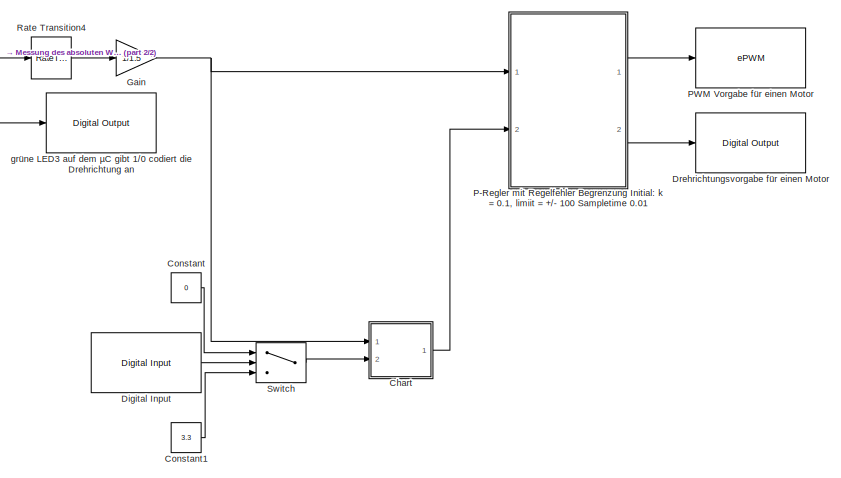
[diagram: root canvas - part 1/2, right side, full height]
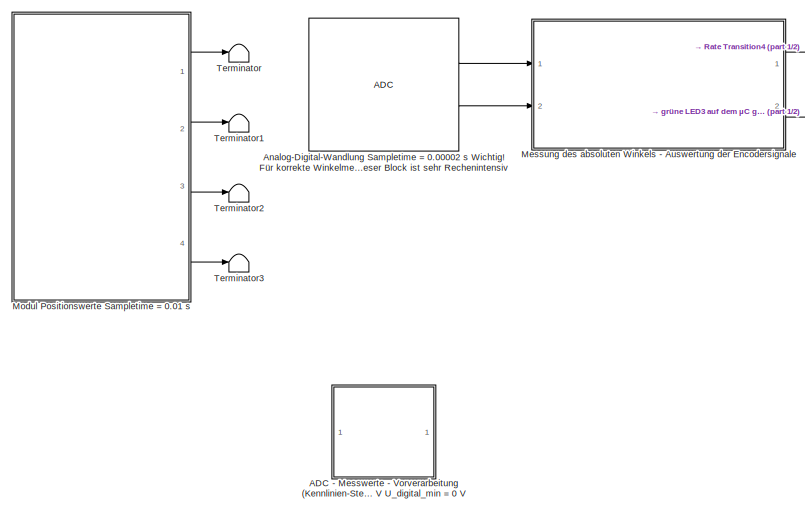
[diagram: root canvas - part 2/2, left side, full height]
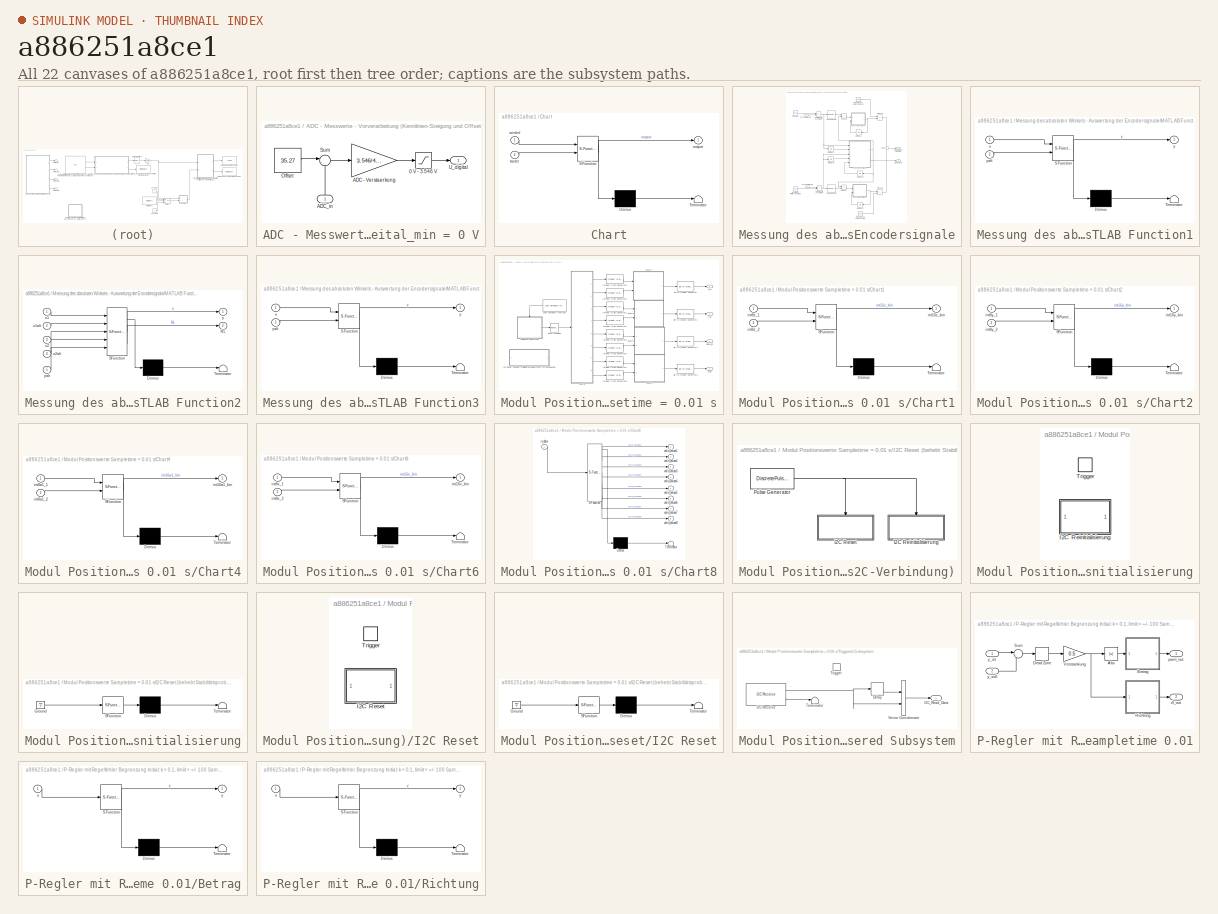
[diagram: thumbnail index - all 22 canvases of the model, root first then tree order]
MODEL slx_a886251a8ce1
KIND model
CONFIG AbsTol = auto
CONFIG EnableMultiTasking = on
CONFIG FixedStep = auto
CONFIG MaxStep = auto
CONFIG MinStep = auto
CONFIG RelTol = 1e-3
CONFIG SampleTimeConstraint = Unconstrained
CONFIG Solver = FixedStepDiscrete
CONFIG SolverName = FixedStepDiscrete
CONFIG StartTime = 0.0
CONFIG StopTime = 10.0
BLOCK [SubSystem] ADC - Messwerte - Vorverarbeitung (Kennlinien-Steigung und Offset-Kompensation) U_digital = (ADC_in - Offset) * 3.546 V // 4096 mit U_digital_max = 3.546 V U_digital_min = 0 V
  Commented = on
  Ports = [1, 1]
  RequestExecContextInheritance = off
BLOCK [Saturate] ADC - Messwerte - Vorverarbeitung (Kennlinien-Steigung und Offset-Kompensation) U_digital = (ADC_in - Offset) * 3.546 V // 4096 mit U_digital_max = 3.546 V U_digital_min = 0 V/0 V - 3.546 V
  InputPortMap = u0
  LowerLimit = 0
  Ports = [1, 1]
  UpperLimit = 3.546
BLOCK [Gain] ADC - Messwerte - Vorverarbeitung (Kennlinien-Steigung und Offset-Kompensation) U_digital = (ADC_in - Offset) * 3.546 V // 4096 mit U_digital_max = 3.546 V U_digital_min = 0 V/ADC - Verstaerkung
  Gain = 3.546/4096
  OutDataTypeStr = Inherit: Inherit via internal rule
  ParamDataTypeStr = Inherit: Inherit via internal rule
  SaturateOnIntegerOverflow = off
BLOCK [Inport] ADC - Messwerte - Vorverarbeitung (Kennlinien-Steigung und Offset-Kompensation) U_digital = (ADC_in - Offset) * 3.546 V // 4096 mit U_digital_max = 3.546 V U_digital_min = 0 V/ADC_in
  IconDisplay = Port number
BLOCK [Constant] ADC - Messwerte - Vorverarbeitung (Kennlinien-Steigung und Offset-Kompensation) U_digital = (ADC_in - Offset) * 3.546 V // 4096 mit U_digital_max = 3.546 V U_digital_min = 0 V/Offset
  Value = 35.27
BLOCK [Sum] ADC - Messwerte - Vorverarbeitung (Kennlinien-Steigung und Offset-Kompensation) U_digital = (ADC_in - Offset) * 3.546 V // 4096 mit U_digital_max = 3.546 V U_digital_min = 0 V/Sum
  IconShape = round
  InputSameDT = off
  Inputs = |-+
  OutDataTypeStr = Inherit: Inherit via internal rule
  Ports = [2, 1]
  SaturateOnIntegerOverflow = off
BLOCK [Outport] ADC - Messwerte - Vorverarbeitung (Kennlinien-Steigung und Offset-Kompensation) U_digital = (ADC_in - Offset) * 3.546 V // 4096 mit U_digital_max = 3.546 V U_digital_min = 0 V/U_digital
  IconDisplay = Port number
BLOCK [Reference] Analog-Digital-Wandlung Sampletime = 0.00002 s Wichtig! Für korrekte Winkelmessung nicht die Sampletime vergrößern Weitere Ports können hinzugefügt werden (Farbsensor, Sharp-Sensoren) Wichtig! Dieser Block ist sehr Rechenintensiv  REF=c280xlib/ADC
  Ports = [0, 2]
  SourceBlock = c280xlib/ADC
  SourceProductBaseCode = TIC2000
  SourceProductName = Embedded Coder Support Package for Texas Instruments C2000 Processors
  SourceType = C280x/C2833x ADC
  UserDataPersistent = on
BLOCK [SubSystem] Chart
  ErrorFcn = Stateflow.Translate.translate
  PermitHierarchicalResolution = ExplicitOnly
  Ports = [2, 1]
  RequestExecContextInheritance = off
  SFBlockType = Chart
  TreatAsAtomicUnit = on
BLOCK [Demux] Chart/ Demux 
  Outputs = 1
  Ports = [1, 1]
BLOCK [S-Function] Chart/ SFunction 
  EnableBusSupport = on
  FunctionName = sf_sfun
  PortCounts = [2 2]
  Ports = [2, 2]
  SFcnIsStateOwnerBlock = off
  SFunctionDeploymentMode = off
  Tag = Stateflow S-Function G6A_Einstiegsaufgabe_Informationstechnik 3
BLOCK [Terminator] Chart/ Terminator 
BLOCK [Outport] Chart/output
  IconDisplay = Port number
BLOCK [Inport] Chart/taster
  IconDisplay = Port number
  Port = 2
BLOCK [Inport] Chart/winkel
  IconDisplay = Port number
BLOCK [Constant] Constant
  Value = 0
BLOCK [Constant] Constant1
  Value = 3.3
BLOCK [Reference] Digital Input  REF=c2833xlib/Digital Input
  Ports = [0, 1]
  SourceBlock = c2833xlib/Digital Input
  SourceProductBaseCode = TIC2000
  SourceProductName = Embedded Coder Support Package for Texas Instruments C2000 Processors
  SourceType = C2833x GPIO Digital Input
  UserDataPersistent = on
BLOCK [Reference] Drehrichtungsvorgabe für einen Motor  REF=c2833xlib/Digital Output
  Ports = [1]
  SourceBlock = c2833xlib/Digital Output
  SourceProductBaseCode = TIC2000
  SourceProductName = Embedded Coder Support Package for Texas Instruments C2000 Processors
  SourceType = C2833x GPIO Digital Output
  UserDataPersistent = on
BLOCK [Gain] Gain
  Gain = 1/1.5
  OutDataTypeStr = Inherit: Inherit via internal rule
  ParamDataTypeStr = Inherit: Inherit via internal rule
  SaturateOnIntegerOverflow = off
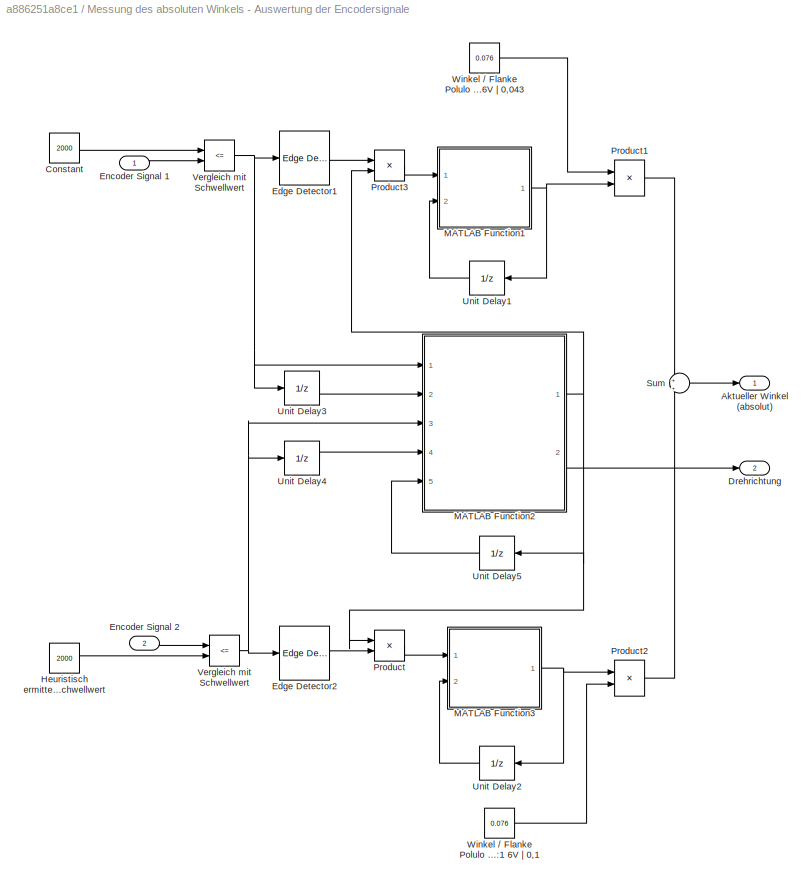
BLOCK [SubSystem] Messung des absoluten Winkels - Auswertung der Encodersignale
  Ports = [2, 2]
  RequestExecContextInheritance = off
BLOCK [Outport] Messung des absoluten Winkels - Auswertung der Encodersignale/Aktueller Winkel (absolut)
  IconDisplay = Port number
BLOCK [Constant] Messung des absoluten Winkels - Auswertung der Encodersignale/Constant
  Value = 2000
BLOCK [Outport] Messung des absoluten Winkels - Auswertung der Encodersignale/Drehrichtung
  IconDisplay = Port number
  Port = 2
BLOCK [Reference] Messung des absoluten Winkels - Auswertung der Encodersignale/Edge Detector1  REF=powerlib_extras/Control 
Blocks/Edge Detector
  Ports = [1, 1]
  SourceBlock = powerlib_extras/Control \nBlocks/Edge Detector
  SourceType = Edge Detector
BLOCK [Reference] Messung des absoluten Winkels - Auswertung der Encodersignale/Edge Detector2  REF=powerlib_extras/Control 
Blocks/Edge Detector
  Ports = [1, 1]
  SourceBlock = powerlib_extras/Control \nBlocks/Edge Detector
  SourceType = Edge Detector
BLOCK [Inport] Messung des absoluten Winkels - Auswertung der Encodersignale/Encoder Signal 1
  IconDisplay = Port number
BLOCK [Inport] Messung des absoluten Winkels - Auswertung der Encodersignale/Encoder Signal 2
  IconDisplay = Port number
  Port = 2
BLOCK [Constant] Messung des absoluten Winkels - Auswertung der Encodersignale/Heuristisch ermittelter Schwellwert
  Value = 2000
BLOCK [SubSystem] Messung des absoluten Winkels - Auswertung der Encodersignale/MATLAB Function1
  ErrorFcn = Stateflow.Translate.translate
  PermitHierarchicalResolution = ExplicitOnly
  Ports = [2, 1]
  RequestExecContextInheritance = off
  SFBlockType = MATLAB Function
  TreatAsAtomicUnit = on
BLOCK [Demux] Messung des absoluten Winkels - Auswertung der Encodersignale/MATLAB Function1/ Demux 
  Outputs = 1
  Ports = [1, 1]
BLOCK [S-Function] Messung des absoluten Winkels - Auswertung der Encodersignale/MATLAB Function1/ SFunction 
  EnableBusSupport = on
  FunctionName = sf_sfun
  PortCounts = [2 2]
  Ports = [2, 2]
  SFcnIsStateOwnerBlock = off
  SFunctionDeploymentMode = off
  Tag = Stateflow S-Function G6A_Einstiegsaufgabe_Informationstechnik 8
BLOCK [Terminator] Messung des absoluten Winkels - Auswertung der Encodersignale/MATLAB Function1/ Terminator 
BLOCK [Inport] Messung des absoluten Winkels - Auswertung der Encodersignale/MATLAB Function1/u
  IconDisplay = Port number
BLOCK [Outport] Messung des absoluten Winkels - Auswertung der Encodersignale/MATLAB Function1/y
  IconDisplay = Port number
BLOCK [Inport] Messung des absoluten Winkels - Auswertung der Encodersignale/MATLAB Function1/yalt
  IconDisplay = Port number
  Port = 2
BLOCK [SubSystem] Messung des absoluten Winkels - Auswertung der Encodersignale/MATLAB Function2
  ErrorFcn = Stateflow.Translate.translate
  PermitHierarchicalResolution = ExplicitOnly
  Ports = [5, 2]
  RequestExecContextInheritance = off
  SFBlockType = MATLAB Function
  TreatAsAtomicUnit = on
BLOCK [Demux] Messung des absoluten Winkels - Auswertung der Encodersignale/MATLAB Function2/ Demux 
  Outputs = 1
  Ports = [1, 1]
BLOCK [S-Function] Messung des absoluten Winkels - Auswertung der Encodersignale/MATLAB Function2/ SFunction 
  EnableBusSupport = on
  FunctionName = sf_sfun
  PortCounts = [5 3]
  Ports = [5, 3]
  SFcnIsStateOwnerBlock = off
  SFunctionDeploymentMode = off
  Tag = Stateflow S-Function G6A_Einstiegsaufgabe_Informationstechnik 15
BLOCK [Terminator] Messung des absoluten Winkels - Auswertung der Encodersignale/MATLAB Function2/ Terminator 
BLOCK [Outport] Messung des absoluten Winkels - Auswertung der Encodersignale/MATLAB Function2/RL
  IconDisplay = Port number
  Port = 2
BLOCK [Inport] Messung des absoluten Winkels - Auswertung der Encodersignale/MATLAB Function2/u1
  IconDisplay = Port number
BLOCK [Inport] Messung des absoluten Winkels - Auswertung der Encodersignale/MATLAB Function2/u1alt
  IconDisplay = Port number
  Port = 2
BLOCK [Inport] Messung des absoluten Winkels - Auswertung der Encodersignale/MATLAB Function2/u2
  IconDisplay = Port number
  Port = 3
BLOCK [Inport] Messung des absoluten Winkels - Auswertung der Encodersignale/MATLAB Function2/u2alt
  IconDisplay = Port number
  Port = 4
BLOCK [Outport] Messung des absoluten Winkels - Auswertung der Encodersignale/MATLAB Function2/y
  IconDisplay = Port number
BLOCK [Inport] Messung des absoluten Winkels - Auswertung der Encodersignale/MATLAB Function2/yalt
  IconDisplay = Port number
  Port = 5
BLOCK [SubSystem] Messung des absoluten Winkels - Auswertung der Encodersignale/MATLAB Function3
  ErrorFcn = Stateflow.Translate.translate
  PermitHierarchicalResolution = ExplicitOnly
  Ports = [2, 1]
  RequestExecContextInheritance = off
  SFBlockType = MATLAB Function
  TreatAsAtomicUnit = on
BLOCK [Demux] Messung des absoluten Winkels - Auswertung der Encodersignale/MATLAB Function3/ Demux 
  Outputs = 1
  Ports = [1, 1]
BLOCK [S-Function] Messung des absoluten Winkels - Auswertung der Encodersignale/MATLAB Function3/ SFunction 
  EnableBusSupport = on
  FunctionName = sf_sfun
  PortCounts = [2 2]
  Ports = [2, 2]
  SFcnIsStateOwnerBlock = off
  SFunctionDeploymentMode = off
  Tag = Stateflow S-Function G6A_Einstiegsaufgabe_Informationstechnik 20
BLOCK [Terminator] Messung des absoluten Winkels - Auswertung der Encodersignale/MATLAB Function3/ Terminator 
BLOCK [Inport] Messung des absoluten Winkels - Auswertung der Encodersignale/MATLAB Function3/u
  IconDisplay = Port number
BLOCK [Outport] Messung des absoluten Winkels - Auswertung der Encodersignale/MATLAB Function3/y
  IconDisplay = Port number
BLOCK [Inport] Messung des absoluten Winkels - Auswertung der Encodersignale/MATLAB Function3/yalt
  IconDisplay = Port number
  Port = 2
BLOCK [Product] Messung des absoluten Winkels - Auswertung der Encodersignale/Product
  InputSameDT = off
  OutDataTypeStr = Inherit: Inherit via internal rule
  Ports = [2, 1]
  SaturateOnIntegerOverflow = off
BLOCK [Product] Messung des absoluten Winkels - Auswertung der Encodersignale/Product1
  InputSameDT = off
  OutDataTypeStr = Inherit: Inherit via internal rule
  Ports = [2, 1]
  SaturateOnIntegerOverflow = off
BLOCK [Product] Messung des absoluten Winkels - Auswertung der Encodersignale/Product2
  InputSameDT = off
  OutDataTypeStr = Inherit: Inherit via internal rule
  Ports = [2, 1]
  SaturateOnIntegerOverflow = off
BLOCK [Product] Messung des absoluten Winkels - Auswertung der Encodersignale/Product3
  InputSameDT = off
  OutDataTypeStr = Inherit: Inherit via internal rule
  Ports = [2, 1]
  SaturateOnIntegerOverflow = off
BLOCK [Sum] Messung des absoluten Winkels - Auswertung der Encodersignale/Sum
  IconShape = round
  InputSameDT = off
  Inputs = +|+
  OutDataTypeStr = Inherit: Inherit via internal rule
  Ports = [2, 1]
  SaturateOnIntegerOverflow = off
BLOCK [UnitDelay] Messung des absoluten Winkels - Auswertung der Encodersignale/Unit Delay1
  InputProcessing = Elements as channels (sample based)
  SampleTime = -1
BLOCK [UnitDelay] Messung des absoluten Winkels - Auswertung der Encodersignale/Unit Delay2
  InputProcessing = Elements as channels (sample based)
  SampleTime = -1
BLOCK [UnitDelay] Messung des absoluten Winkels - Auswertung der Encodersignale/Unit Delay3
  InputProcessing = Elements as channels (sample based)
  SampleTime = -1
BLOCK [UnitDelay] Messung des absoluten Winkels - Auswertung der Encodersignale/Unit Delay4
  InputProcessing = Elements as channels (sample based)
  SampleTime = -1
BLOCK [UnitDelay] Messung des absoluten Winkels - Auswertung der Encodersignale/Unit Delay5
  InputProcessing = Elements as channels (sample based)
  SampleTime = -1
BLOCK [RelationalOperator] Messung des absoluten Winkels - Auswertung der Encodersignale/Vergleich mit Schwellwert
  InputSameDT = off
  Operator = <=
  OutDataTypeStr = boolean
  Ports = [2, 1]
BLOCK [Constant] Messung des absoluten Winkels - Auswertung der Encodersignale/Winkel // Flanke Polulo 34:1 6V | 0,22 Polulo 74:1 6V | 0,1 Polulo 98:1 6V | 0,076 Polulo 171:1 6V | 0,043
  Value = 0.076
BLOCK [Constant] Messung des absoluten Winkels - Auswertung der Encodersignale/Winkel // Flanke Polulo 34:1 6V | 0,22 Polulo 74:1 6V | 0,1 Polulo 98:1 6V | 0,076 Polulo 171:1 6V | 0,1
  Value = 0.076
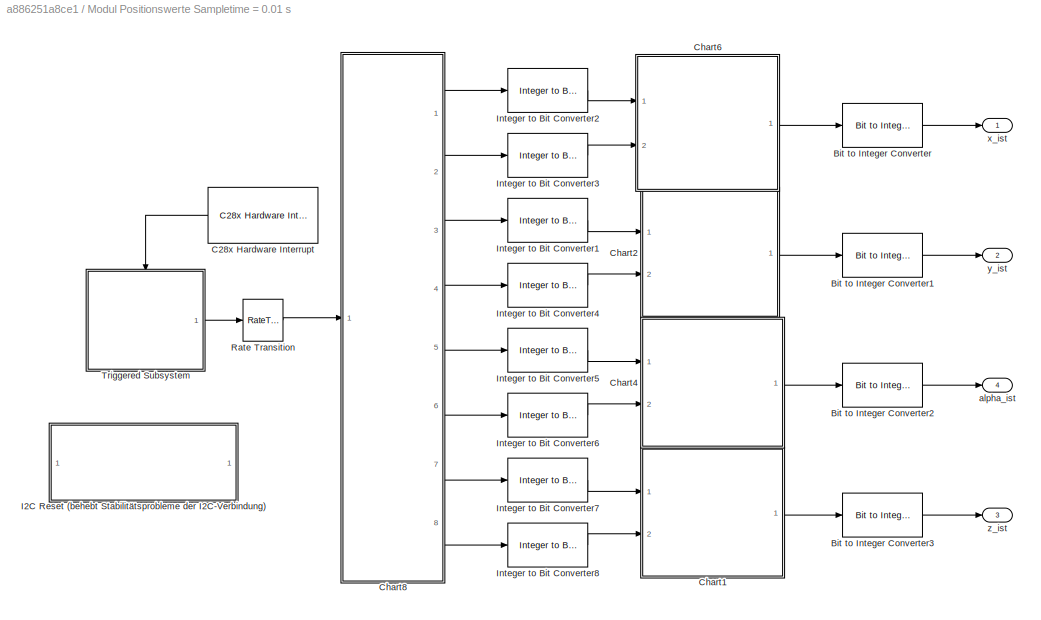
BLOCK [SubSystem] Modul Positionswerte Sampletime = 0.01 s
  Commented = on
  Ports = [0, 4]
  RequestExecContextInheritance = off
BLOCK [Reference] Modul Positionswerte Sampletime = 0.01 s/Bit to Integer Converter  REF=commutil2/Bit to Integer
Converter
  Ports = [1, 1]
  SourceBlock = commutil2/Bit to Integer\nConverter
  SourceProductBaseCode = CM
  SourceProductName = Communications Toolbox
  SourceType = Bit to Integer Converter
BLOCK [Reference] Modul Positionswerte Sampletime = 0.01 s/Bit to Integer Converter1  REF=commutil2/Bit to Integer
Converter
  Ports = [1, 1]
  SourceBlock = commutil2/Bit to Integer\nConverter
  SourceProductBaseCode = CM
  SourceProductName = Communications Toolbox
  SourceType = Bit to Integer Converter
BLOCK [Reference] Modul Positionswerte Sampletime = 0.01 s/Bit to Integer Converter2  REF=commutil2/Bit to Integer
Converter
  Ports = [1, 1]
  SourceBlock = commutil2/Bit to Integer\nConverter
  SourceProductBaseCode = CM
  SourceProductName = Communications Toolbox
  SourceType = Bit to Integer Converter
BLOCK [Reference] Modul Positionswerte Sampletime = 0.01 s/Bit to Integer Converter3  REF=commutil2/Bit to Integer
Converter
  Ports = [1, 1]
  SourceBlock = commutil2/Bit to Integer\nConverter
  SourceProductBaseCode = CM
  SourceProductName = Communications Toolbox
  SourceType = Bit to Integer Converter
BLOCK [Reference] Modul Positionswerte Sampletime = 0.01 s/C28x Hardware Interrupt  REF=c2000lib/Scheduling/C28x Hardware Interrupt
  Ports = [0, 1]
  SourceBlock = c2000lib/Scheduling/C28x Hardware Interrupt
  SourceProductBaseCode = TIC2000
  SourceProductName = Embedded Coder Support Package for Texas Instruments C2000 Processors
  SourceType = C28x Interrupt Block
BLOCK [SubSystem] Modul Positionswerte Sampletime = 0.01 s/Chart1
  ErrorFcn = Stateflow.Translate.translate
  PermitHierarchicalResolution = ExplicitOnly
  Ports = [2, 1]
  RequestExecContextInheritance = off
  SFBlockType = Chart
  TreatAsAtomicUnit = on
BLOCK [Demux] Modul Positionswerte Sampletime = 0.01 s/Chart1/ Demux 
  Outputs = 1
  Ports = [1, 1]
BLOCK [S-Function] Modul Positionswerte Sampletime = 0.01 s/Chart1/ SFunction 
  EnableBusSupport = on
  FunctionName = sf_sfun
  PortCounts = [2 2]
  Ports = [2, 2]
  SFcnIsStateOwnerBlock = off
  SFunctionDeploymentMode = off
  Tag = Stateflow S-Function G6A_Einstiegsaufgabe_Informationstechnik 11
BLOCK [Terminator] Modul Positionswerte Sampletime = 0.01 s/Chart1/ Terminator 
BLOCK [Outport] Modul Positionswerte Sampletime = 0.01 s/Chart1/int16z_bin
  IconDisplay = Port number
BLOCK [Inport] Modul Positionswerte Sampletime = 0.01 s/Chart1/int8z_1
  IconDisplay = Port number
BLOCK [Inport] Modul Positionswerte Sampletime = 0.01 s/Chart1/int8z_2
  IconDisplay = Port number
  Port = 2
BLOCK [SubSystem] Modul Positionswerte Sampletime = 0.01 s/Chart2
  ErrorFcn = Stateflow.Translate.translate
  PermitHierarchicalResolution = ExplicitOnly
  Ports = [2, 1]
  RequestExecContextInheritance = off
  SFBlockType = Chart
  TreatAsAtomicUnit = on
BLOCK [Demux] Modul Positionswerte Sampletime = 0.01 s/Chart2/ Demux 
  Outputs = 1
  Ports = [1, 1]
BLOCK [S-Function] Modul Positionswerte Sampletime = 0.01 s/Chart2/ SFunction 
  EnableBusSupport = on
  FunctionName = sf_sfun
  PortCounts = [2 2]
  Ports = [2, 2]
  SFcnIsStateOwnerBlock = off
  SFunctionDeploymentMode = off
  Tag = Stateflow S-Function G6A_Einstiegsaufgabe_Informationstechnik 13
BLOCK [Terminator] Modul Positionswerte Sampletime = 0.01 s/Chart2/ Terminator 
BLOCK [Outport] Modul Positionswerte Sampletime = 0.01 s/Chart2/int16y_bin
  IconDisplay = Port number
BLOCK [Inport] Modul Positionswerte Sampletime = 0.01 s/Chart2/int8y_1
  IconDisplay = Port number
BLOCK [Inport] Modul Positionswerte Sampletime = 0.01 s/Chart2/int8y_2
  IconDisplay = Port number
  Port = 2
BLOCK [SubSystem] Modul Positionswerte Sampletime = 0.01 s/Chart4
  ErrorFcn = Stateflow.Translate.translate
  PermitHierarchicalResolution = ExplicitOnly
  Ports = [2, 1]
  RequestExecContextInheritance = off
  SFBlockType = Chart
  TreatAsAtomicUnit = on
BLOCK [Demux] Modul Positionswerte Sampletime = 0.01 s/Chart4/ Demux 
  Outputs = 1
  Ports = [1, 1]
BLOCK [S-Function] Modul Positionswerte Sampletime = 0.01 s/Chart4/ SFunction 
  EnableBusSupport = on
  FunctionName = sf_sfun
  PortCounts = [2 2]
  Ports = [2, 2]
  SFcnIsStateOwnerBlock = off
  SFunctionDeploymentMode = off
  Tag = Stateflow S-Function G6A_Einstiegsaufgabe_Informationstechnik 14
BLOCK [Terminator] Modul Positionswerte Sampletime = 0.01 s/Chart4/ Terminator 
BLOCK [Outport] Modul Positionswerte Sampletime = 0.01 s/Chart4/int16a1_bin
  IconDisplay = Port number
BLOCK [Inport] Modul Positionswerte Sampletime = 0.01 s/Chart4/int8a1_1
  IconDisplay = Port number
BLOCK [Inport] Modul Positionswerte Sampletime = 0.01 s/Chart4/int8a1_2
  IconDisplay = Port number
  Port = 2
BLOCK [SubSystem] Modul Positionswerte Sampletime = 0.01 s/Chart6
  ErrorFcn = Stateflow.Translate.translate
  PermitHierarchicalResolution = ExplicitOnly
  Ports = [2, 1]
  RequestExecContextInheritance = off
  SFBlockType = Chart
  TreatAsAtomicUnit = on
BLOCK [Demux] Modul Positionswerte Sampletime = 0.01 s/Chart6/ Demux 
  Outputs = 1
  Ports = [1, 1]
BLOCK [S-Function] Modul Positionswerte Sampletime = 0.01 s/Chart6/ SFunction 
  EnableBusSupport = on
  FunctionName = sf_sfun
  PortCounts = [2 2]
  Ports = [2, 2]
  SFcnIsStateOwnerBlock = off
  SFunctionDeploymentMode = off
  Tag = Stateflow S-Function G6A_Einstiegsaufgabe_Informationstechnik 16
BLOCK [Terminator] Modul Positionswerte Sampletime = 0.01 s/Chart6/ Terminator 
BLOCK [Outport] Modul Positionswerte Sampletime = 0.01 s/Chart6/int16x_bin
  IconDisplay = Port number
BLOCK [Inport] Modul Positionswerte Sampletime = 0.01 s/Chart6/int8x_1
  IconDisplay = Port number
BLOCK [Inport] Modul Positionswerte Sampletime = 0.01 s/Chart6/int8x_2
  IconDisplay = Port number
  Port = 2
BLOCK [SubSystem] Modul Positionswerte Sampletime = 0.01 s/Chart8
  ErrorFcn = Stateflow.Translate.translate
  PermitHierarchicalResolution = ExplicitOnly
  Ports = [1, 8]
  RequestExecContextInheritance = off
  SFBlockType = Chart
  TreatAsAtomicUnit = on
BLOCK [Demux] Modul Positionswerte Sampletime = 0.01 s/Chart8/ Demux 
  Outputs = 1
  Ports = [1, 1]
BLOCK [S-Function] Modul Positionswerte Sampletime = 0.01 s/Chart8/ SFunction 
  EnableBusSupport = on
  FunctionName = sf_sfun
  PortCounts = [1 9]
  Ports = [1, 9]
  SFcnIsStateOwnerBlock = off
  SFunctionDeploymentMode = off
  Tag = Stateflow S-Function G6A_Einstiegsaufgabe_Informationstechnik 17
BLOCK [Terminator] Modul Positionswerte Sampletime = 0.01 s/Chart8/ Terminator 
BLOCK [Inport] Modul Positionswerte Sampletime = 0.01 s/Chart8/in_data
  IconDisplay = Port number
BLOCK [Outport] Modul Positionswerte Sampletime = 0.01 s/Chart8/valid_values1
  IconDisplay = Port number
BLOCK [Outport] Modul Positionswerte Sampletime = 0.01 s/Chart8/valid_values2
  IconDisplay = Port number
  Port = 2
BLOCK [Outport] Modul Positionswerte Sampletime = 0.01 s/Chart8/valid_values3
  IconDisplay = Port number
  Port = 3
BLOCK [Outport] Modul Positionswerte Sampletime = 0.01 s/Chart8/valid_values4
  IconDisplay = Port number
  Port = 4
BLOCK [Outport] Modul Positionswerte Sampletime = 0.01 s/Chart8/valid_values5
  IconDisplay = Port number
  Port = 5
BLOCK [Outport] Modul Positionswerte Sampletime = 0.01 s/Chart8/valid_values6
  IconDisplay = Port number
  Port = 6
BLOCK [Outport] Modul Positionswerte Sampletime = 0.01 s/Chart8/valid_values7
  IconDisplay = Port number
  Port = 7
BLOCK [Outport] Modul Positionswerte Sampletime = 0.01 s/Chart8/valid_values8
  IconDisplay = Port number
  Port = 8
BLOCK [SubSystem] Modul Positionswerte Sampletime = 0.01 s/I2C Reset (behebt Stabilitätsprobleme der I2C-Verbindung)
  Ports = []
  RequestExecContextInheritance = off
BLOCK [SubSystem] Modul Positionswerte Sampletime = 0.01 s/I2C Reset (behebt Stabilitätsprobleme der I2C-Verbindung)/I2C Reinitialisierung
  Ports = [0, 0, 0, 1]
  RequestExecContextInheritance = off
  TreatAsAtomicUnit = on
BLOCK [SubSystem] Modul Positionswerte Sampletime = 0.01 s/I2C Reset (behebt Stabilitätsprobleme der I2C-Verbindung)/I2C Reinitialisierung/I2C Reinitialisierung
  ErrorFcn = Stateflow.Translate.translate
  PermitHierarchicalResolution = ExplicitOnly
  Ports = []
  RequestExecContextInheritance = off
  SFBlockType = MATLAB Function
  TreatAsAtomicUnit = on
BLOCK [Demux] Modul Positionswerte Sampletime = 0.01 s/I2C Reset (behebt Stabilitätsprobleme der I2C-Verbindung)/I2C Reinitialisierung/I2C Reinitialisierung/ Demux 
  Outputs = 1
  Ports = [1, 1]
BLOCK [Ground] Modul Positionswerte Sampletime = 0.01 s/I2C Reset (behebt Stabilitätsprobleme der I2C-Verbindung)/I2C Reinitialisierung/I2C Reinitialisierung/ Ground 
BLOCK [S-Function] Modul Positionswerte Sampletime = 0.01 s/I2C Reset (behebt Stabilitätsprobleme der I2C-Verbindung)/I2C Reinitialisierung/I2C Reinitialisierung/ SFunction 
  EnableBusSupport = on
  FunctionName = sf_sfun
  PortCounts = [1 1]
  Ports = [1, 1]
  SFcnIsStateOwnerBlock = off
  SFunctionDeploymentMode = off
  Tag = Stateflow S-Function G6A_Einstiegsaufgabe_Informationstechnik 24
BLOCK [Terminator] Modul Positionswerte Sampletime = 0.01 s/I2C Reset (behebt Stabilitätsprobleme der I2C-Verbindung)/I2C Reinitialisierung/I2C Reinitialisierung/ Terminator 
BLOCK [TriggerPort] Modul Positionswerte Sampletime = 0.01 s/I2C Reset (behebt Stabilitätsprobleme der I2C-Verbindung)/I2C Reinitialisierung/Trigger
  Ports = []
  StatesWhenEnabling = held
  TriggerType = falling
  VariantControl = (inherit)
BLOCK [SubSystem] Modul Positionswerte Sampletime = 0.01 s/I2C Reset (behebt Stabilitätsprobleme der I2C-Verbindung)/I2C Reset
  Ports = [0, 0, 0, 1]
  RequestExecContextInheritance = off
  TreatAsAtomicUnit = on
BLOCK [SubSystem] Modul Positionswerte Sampletime = 0.01 s/I2C Reset (behebt Stabilitätsprobleme der I2C-Verbindung)/I2C Reset/I2C Reset
  ErrorFcn = Stateflow.Translate.translate
  PermitHierarchicalResolution = ExplicitOnly
  Ports = []
  RequestExecContextInheritance = off
  SFBlockType = MATLAB Function
  TreatAsAtomicUnit = on
BLOCK [Demux] Modul Positionswerte Sampletime = 0.01 s/I2C Reset (behebt Stabilitätsprobleme der I2C-Verbindung)/I2C Reset/I2C Reset/ Demux 
  Outputs = 1
  Ports = [1, 1]
BLOCK [Ground] Modul Positionswerte Sampletime = 0.01 s/I2C Reset (behebt Stabilitätsprobleme der I2C-Verbindung)/I2C Reset/I2C Reset/ Ground 
BLOCK [S-Function] Modul Positionswerte Sampletime = 0.01 s/I2C Reset (behebt Stabilitätsprobleme der I2C-Verbindung)/I2C Reset/I2C Reset/ SFunction 
  EnableBusSupport = on
  FunctionName = sf_sfun
  PortCounts = [1 1]
  Ports = [1, 1]
  SFcnIsStateOwnerBlock = off
  SFunctionDeploymentMode = off
  Tag = Stateflow S-Function G6A_Einstiegsaufgabe_Informationstechnik 21
BLOCK [Terminator] Modul Positionswerte Sampletime = 0.01 s/I2C Reset (behebt Stabilitätsprobleme der I2C-Verbindung)/I2C Reset/I2C Reset/ Terminator 
BLOCK [TriggerPort] Modul Positionswerte Sampletime = 0.01 s/I2C Reset (behebt Stabilitätsprobleme der I2C-Verbindung)/I2C Reset/Trigger
  Ports = []
  StatesWhenEnabling = held
  VariantControl = (inherit)
BLOCK [DiscretePulseGenerator] Modul Positionswerte Sampletime = 0.01 s/I2C Reset (behebt Stabilitätsprobleme der I2C-Verbindung)/Pulse Generator
  Period = 250
  Ports = [0, 1]
  SampleTime = 0.01
BLOCK [Reference] Modul Positionswerte Sampletime = 0.01 s/Integer to Bit Converter1  REF=commutil2/Integer to Bit
Converter
  Ports = [1, 1]
  SourceBlock = commutil2/Integer to Bit\nConverter
  SourceProductBaseCode = CM
  SourceProductName = Communications Toolbox
  SourceType = Integer to Bit Converter
BLOCK [Reference] Modul Positionswerte Sampletime = 0.01 s/Integer to Bit Converter2  REF=commutil2/Integer to Bit
Converter
  Ports = [1, 1]
  SourceBlock = commutil2/Integer to Bit\nConverter
  SourceProductBaseCode = CM
  SourceProductName = Communications Toolbox
  SourceType = Integer to Bit Converter
BLOCK [Reference] Modul Positionswerte Sampletime = 0.01 s/Integer to Bit Converter3  REF=commutil2/Integer to Bit
Converter
  Ports = [1, 1]
  SourceBlock = commutil2/Integer to Bit\nConverter
  SourceProductBaseCode = CM
  SourceProductName = Communications Toolbox
  SourceType = Integer to Bit Converter
BLOCK [Reference] Modul Positionswerte Sampletime = 0.01 s/Integer to Bit Converter4  REF=commutil2/Integer to Bit
Converter
  Ports = [1, 1]
  SourceBlock = commutil2/Integer to Bit\nConverter
  SourceProductBaseCode = CM
  SourceProductName = Communications Toolbox
  SourceType = Integer to Bit Converter
BLOCK [Reference] Modul Positionswerte Sampletime = 0.01 s/Integer to Bit Converter5  REF=commutil2/Integer to Bit
Converter
  Ports = [1, 1]
  SourceBlock = commutil2/Integer to Bit\nConverter
  SourceProductBaseCode = CM
  SourceProductName = Communications Toolbox
  SourceType = Integer to Bit Converter
BLOCK [Reference] Modul Positionswerte Sampletime = 0.01 s/Integer to Bit Converter6  REF=commutil2/Integer to Bit
Converter
  Ports = [1, 1]
  SourceBlock = commutil2/Integer to Bit\nConverter
  SourceProductBaseCode = CM
  SourceProductName = Communications Toolbox
  SourceType = Integer to Bit Converter
BLOCK [Reference] Modul Positionswerte Sampletime = 0.01 s/Integer to Bit Converter7  REF=commutil2/Integer to Bit
Converter
  Ports = [1, 1]
  SourceBlock = commutil2/Integer to Bit\nConverter
  SourceProductBaseCode = CM
  SourceProductName = Communications Toolbox
  SourceType = Integer to Bit Converter
BLOCK [Reference] Modul Positionswerte Sampletime = 0.01 s/Integer to Bit Converter8  REF=commutil2/Integer to Bit
Converter
  Ports = [1, 1]
  SourceBlock = commutil2/Integer to Bit\nConverter
  SourceProductBaseCode = CM
  SourceProductName = Communications Toolbox
  SourceType = Integer to Bit Converter
BLOCK [RateTransition] Modul Positionswerte Sampletime = 0.01 s/Rate Transition
  Deterministic = off
  OutPortSampleTime = 0.01
BLOCK [SubSystem] Modul Positionswerte Sampletime = 0.01 s/Triggered Subsystem
  Ports = [0, 1, 0, 1]
  RequestExecContextInheritance = off
  TreatAsAtomicUnit = on
BLOCK [Delay] Modul Positionswerte Sampletime = 0.01 s/Triggered Subsystem/Delay
  DelayLength = 1
  InitialCondition = 0
  InputPortMap = u0
  Ports = [1, 1]
BLOCK [Reference] Modul Positionswerte Sampletime = 0.01 s/Triggered Subsystem/I2C Receive  REF=c280xlib/I2C Receive
  Ports = [0, 2]
  SourceBlock = c280xlib/I2C Receive
  SourceProductBaseCode = TIC2000
  SourceProductName = Embedded Coder Support Package for Texas Instruments C2000 Processors
  SourceType = C28x I2C Receive
BLOCK [Outport] Modul Positionswerte Sampletime = 0.01 s/Triggered Subsystem/I2C_Read_Data
  IconDisplay = Port number
BLOCK [Terminator] Modul Positionswerte Sampletime = 0.01 s/Triggered Subsystem/Terminator
BLOCK [TriggerPort] Modul Positionswerte Sampletime = 0.01 s/Triggered Subsystem/Trigger
  Ports = []
  StatesWhenEnabling = held
  TriggerType = function-call
  VariantControl = (inherit)
BLOCK [Concatenate] Modul Positionswerte Sampletime = 0.01 s/Triggered Subsystem/Vector Concatenate
  Ports = [2, 1]
BLOCK [Outport] Modul Positionswerte Sampletime = 0.01 s/alpha_ist
  IconDisplay = Port number
  Port = 4
BLOCK [Outport] Modul Positionswerte Sampletime = 0.01 s/x_ist
  IconDisplay = Port number
BLOCK [Outport] Modul Positionswerte Sampletime = 0.01 s/y_ist
  IconDisplay = Port number
  Port = 2
BLOCK [Outport] Modul Positionswerte Sampletime = 0.01 s/z_ist
  IconDisplay = Port number
  Port = 3
BLOCK [SubSystem] P-Regler mit Regelfehler Begrenzung Initial: k = 0.1, limiit = +//- 100 Sampletime 0.01
  Ports = [2, 2]
  RequestExecContextInheritance = off
BLOCK [Abs] P-Regler mit Regelfehler Begrenzung Initial: k = 0.1, limiit = +//- 100 Sampletime 0.01/Abs
  SampleTime = 0.01
  SaturateOnIntegerOverflow = off
BLOCK [SubSystem] P-Regler mit Regelfehler Begrenzung Initial: k = 0.1, limiit = +//- 100 Sampletime 0.01/Betrag
  ErrorFcn = Stateflow.Translate.translate
  PermitHierarchicalResolution = ExplicitOnly
  Ports = [1, 1]
  RequestExecContextInheritance = off
  SFBlockType = MATLAB Function
  SystemSampleTime = 0.01
  TreatAsAtomicUnit = on
BLOCK [Demux] P-Regler mit Regelfehler Begrenzung Initial: k = 0.1, limiit = +//- 100 Sampletime 0.01/Betrag/ Demux 
  Outputs = 1
  Ports = [1, 1]
BLOCK [S-Function] P-Regler mit Regelfehler Begrenzung Initial: k = 0.1, limiit = +//- 100 Sampletime 0.01/Betrag/ SFunction 
  EnableBusSupport = on
  FunctionName = sf_sfun
  PortCounts = [1 2]
  Ports = [1, 2]
  SFcnIsStateOwnerBlock = off
  SFunctionDeploymentMode = off
  Tag = Stateflow S-Function G6A_Einstiegsaufgabe_Informationstechnik 4
BLOCK [Terminator] P-Regler mit Regelfehler Begrenzung Initial: k = 0.1, limiit = +//- 100 Sampletime 0.01/Betrag/ Terminator 
BLOCK [Inport] P-Regler mit Regelfehler Begrenzung Initial: k = 0.1, limiit = +//- 100 Sampletime 0.01/Betrag/u
  IconDisplay = Port number
BLOCK [Outport] P-Regler mit Regelfehler Begrenzung Initial: k = 0.1, limiit = +//- 100 Sampletime 0.01/Betrag/y
  IconDisplay = Port number
BLOCK [DeadZone] P-Regler mit Regelfehler Begrenzung Initial: k = 0.1, limiit = +//- 100 Sampletime 0.01/Dead Zone
  LowerValue = -5
  SampleTime = 0.01
  UpperValue = 5
BLOCK [SubSystem] P-Regler mit Regelfehler Begrenzung Initial: k = 0.1, limiit = +//- 100 Sampletime 0.01/Richtung
  ErrorFcn = Stateflow.Translate.translate
  PermitHierarchicalResolution = ExplicitOnly
  Ports = [1, 1]
  RequestExecContextInheritance = off
  SFBlockType = MATLAB Function
  SystemSampleTime = 0.01
  TreatAsAtomicUnit = on
BLOCK [Demux] P-Regler mit Regelfehler Begrenzung Initial: k = 0.1, limiit = +//- 100 Sampletime 0.01/Richtung/ Demux 
  Outputs = 1
  Ports = [1, 1]
BLOCK [S-Function] P-Regler mit Regelfehler Begrenzung Initial: k = 0.1, limiit = +//- 100 Sampletime 0.01/Richtung/ SFunction 
  EnableBusSupport = on
  FunctionName = sf_sfun
  PortCounts = [1 2]
  Ports = [1, 2]
  SFcnIsStateOwnerBlock = off
  SFunctionDeploymentMode = off
  Tag = Stateflow S-Function G6A_Einstiegsaufgabe_Informationstechnik 6
BLOCK [Terminator] P-Regler mit Regelfehler Begrenzung Initial: k = 0.1, limiit = +//- 100 Sampletime 0.01/Richtung/ Terminator 
BLOCK [Inport] P-Regler mit Regelfehler Begrenzung Initial: k = 0.1, limiit = +//- 100 Sampletime 0.01/Richtung/u
  IconDisplay = Port number
BLOCK [Outport] P-Regler mit Regelfehler Begrenzung Initial: k = 0.1, limiit = +//- 100 Sampletime 0.01/Richtung/y
  IconDisplay = Port number
BLOCK [Sum] P-Regler mit Regelfehler Begrenzung Initial: k = 0.1, limiit = +//- 100 Sampletime 0.01/Sum
  IconShape = round
  InputSameDT = off
  Inputs = |-+
  OutDataTypeStr = Inherit: Inherit via internal rule
  Ports = [2, 1]
  SampleTime = 0.01
  SaturateOnIntegerOverflow = off
BLOCK [Gain] P-Regler mit Regelfehler Begrenzung Initial: k = 0.1, limiit = +//- 100 Sampletime 0.01/Verstaerkung
  Gain = 0.5
  OutDataTypeStr = Inherit: Inherit via internal rule
  ParamDataTypeStr = Inherit: Inherit via internal rule
  SampleTime = 0.01
  SaturateOnIntegerOverflow = off
BLOCK [Outport] P-Regler mit Regelfehler Begrenzung Initial: k = 0.1, limiit = +//- 100 Sampletime 0.01/pwm_out
  IconDisplay = Port number
BLOCK [Outport] P-Regler mit Regelfehler Begrenzung Initial: k = 0.1, limiit = +//- 100 Sampletime 0.01/r//l_out
  IconDisplay = Port number
  Port = 2
BLOCK [Inport] P-Regler mit Regelfehler Begrenzung Initial: k = 0.1, limiit = +//- 100 Sampletime 0.01/y_ist
  IconDisplay = Port number
BLOCK [Inport] P-Regler mit Regelfehler Begrenzung Initial: k = 0.1, limiit = +//- 100 Sampletime 0.01/y_soll
  IconDisplay = Port number
  Port = 2
BLOCK [Reference] PWM Vorgabe für einen Motor   REF=c280xlib/ePWM
  Ports = [1]
  SourceBlock = c280xlib/ePWM
  SourceProductBaseCode = TIC2000
  SourceProductName = Embedded Coder Support Package for Texas Instruments C2000 Processors
  SourceType = C280x/C2833x ePWM
BLOCK [RateTransition] Rate Transition4
  OutPortSampleTime = 0.01
BLOCK [Switch] Switch
  Criteria = u2 > Threshold
  InputSameDT = off
  SaturateOnIntegerOverflow = off
BLOCK [Terminator] Terminator
BLOCK [Terminator] Terminator1
BLOCK [Terminator] Terminator2
BLOCK [Terminator] Terminator3
BLOCK [Reference] grüne LED3 auf dem µC gibt 1//0 codiert die Drehrichtung an  REF=c2833xlib/Digital Output
  Ports = [1]
  SourceBlock = c2833xlib/Digital Output
  SourceProductBaseCode = TIC2000
  SourceProductName = Embedded Coder Support Package for Texas Instruments C2000 Processors
  SourceType = C2833x GPIO Digital Output
  UserDataPersistent = on
LINE ADC - Messwerte - Vorverarbeitung (Kennlinien-Steigung und Offset-Kompensation) U_digital = (ADC_in - Offset) * 3.546 V // 4096 mit U_digital_max = 3.546 V U_digital_min = 0 V/0 V - 3.546 V:1 -> ADC - Messwerte - Vorverarbeitung (Kennlinien-Steigung und Offset-Kompensation) U_digital = (ADC_in - Offset) * 3.546 V // 4096 mit U_digital_max = 3.546 V U_digital_min = 0 V/U_digital:1
LINE ADC - Messwerte - Vorverarbeitung (Kennlinien-Steigung und Offset-Kompensation) U_digital = (ADC_in - Offset) * 3.546 V // 4096 mit U_digital_max = 3.546 V U_digital_min = 0 V/ADC - Verstaerkung:1 -> ADC - Messwerte - Vorverarbeitung (Kennlinien-Steigung und Offset-Kompensation) U_digital = (ADC_in - Offset) * 3.546 V // 4096 mit U_digital_max = 3.546 V U_digital_min = 0 V/0 V - 3.546 V:1
LINE ADC - Messwerte - Vorverarbeitung (Kennlinien-Steigung und Offset-Kompensation) U_digital = (ADC_in - Offset) * 3.546 V // 4096 mit U_digital_max = 3.546 V U_digital_min = 0 V/ADC_in:1 -> ADC - Messwerte - Vorverarbeitung (Kennlinien-Steigung und Offset-Kompensation) U_digital = (ADC_in - Offset) * 3.546 V // 4096 mit U_digital_max = 3.546 V U_digital_min = 0 V/Sum:2
LINE ADC - Messwerte - Vorverarbeitung (Kennlinien-Steigung und Offset-Kompensation) U_digital = (ADC_in - Offset) * 3.546 V // 4096 mit U_digital_max = 3.546 V U_digital_min = 0 V/Offset:1 -> ADC - Messwerte - Vorverarbeitung (Kennlinien-Steigung und Offset-Kompensation) U_digital = (ADC_in - Offset) * 3.546 V // 4096 mit U_digital_max = 3.546 V U_digital_min = 0 V/Sum:1
LINE ADC - Messwerte - Vorverarbeitung (Kennlinien-Steigung und Offset-Kompensation) U_digital = (ADC_in - Offset) * 3.546 V // 4096 mit U_digital_max = 3.546 V U_digital_min = 0 V/Sum:1 -> ADC - Messwerte - Vorverarbeitung (Kennlinien-Steigung und Offset-Kompensation) U_digital = (ADC_in - Offset) * 3.546 V // 4096 mit U_digital_max = 3.546 V U_digital_min = 0 V/ADC - Verstaerkung:1
LINE Analog-Digital-Wandlung Sampletime = 0.00002 s Wichtig! Für korrekte Winkelmessung nicht die Sampletime vergrößern Weitere Ports können hinzugefügt werden (Farbsensor, Sharp-Sensoren) Wichtig! Dieser Block ist sehr Rechenintensiv:1 -> Messung des absoluten Winkels - Auswertung der Encodersignale:1
LINE Analog-Digital-Wandlung Sampletime = 0.00002 s Wichtig! Für korrekte Winkelmessung nicht die Sampletime vergrößern Weitere Ports können hinzugefügt werden (Farbsensor, Sharp-Sensoren) Wichtig! Dieser Block ist sehr Rechenintensiv:2 -> Messung des absoluten Winkels - Auswertung der Encodersignale:2
LINE Chart:1 -> P-Regler mit Regelfehler Begrenzung Initial: k = 0.1, limiit = +//- 100 Sampletime 0.01:2
LINE Constant1:1 -> Switch:3
LINE Constant:1 -> Switch:1
LINE Digital Input:1 -> Switch:2
NET Gain:1 -> Chart:1, P-Regler mit Regelfehler Begrenzung Initial: k = 0.1, limiit = +//- 100 Sampletime 0.01:1
LINE Messung des absoluten Winkels - Auswertung der Encodersignale/Constant:1 -> Messung des absoluten Winkels - Auswertung der Encodersignale/Vergleich mit Schwellwert:1
LINE Messung des absoluten Winkels - Auswertung der Encodersignale/Edge Detector1:1 -> Messung des absoluten Winkels - Auswertung der Encodersignale/Product3:1
LINE Messung des absoluten Winkels - Auswertung der Encodersignale/Edge Detector2:1 -> Messung des absoluten Winkels - Auswertung der Encodersignale/Product:2
LINE Messung des absoluten Winkels - Auswertung der Encodersignale/Encoder Signal 1:1 -> Messung des absoluten Winkels - Auswertung der Encodersignale/Vergleich mit Schwellwert:2
LINE Messung des absoluten Winkels - Auswertung der Encodersignale/Encoder Signal 2:1 -> Messung des absoluten Winkels - Auswertung der Encodersignale/Vergleich mit Schwellwert:1
LINE Messung des absoluten Winkels - Auswertung der Encodersignale/Heuristisch ermittelter Schwellwert:1 -> Messung des absoluten Winkels - Auswertung der Encodersignale/Vergleich mit Schwellwert:2
NET Messung des absoluten Winkels - Auswertung der Encodersignale/MATLAB Function1:1 -> Messung des absoluten Winkels - Auswertung der Encodersignale/Product1:2, Messung des absoluten Winkels - Auswertung der Encodersignale/Unit Delay1:1
NET Messung des absoluten Winkels - Auswertung der Encodersignale/MATLAB Function2:1 -> Messung des absoluten Winkels - Auswertung der Encodersignale/Product3:2, Messung des absoluten Winkels - Auswertung der Encodersignale/Product:1, Messung des absoluten Winkels - Auswertung der Encodersignale/Unit Delay5:1
LINE Messung des absoluten Winkels - Auswertung der Encodersignale/MATLAB Function2:2 -> Messung des absoluten Winkels - Auswertung der Encodersignale/Drehrichtung:1
NET Messung des absoluten Winkels - Auswertung der Encodersignale/MATLAB Function3:1 -> Messung des absoluten Winkels - Auswertung der Encodersignale/Product2:1, Messung des absoluten Winkels - Auswertung der Encodersignale/Unit Delay2:1
LINE Messung des absoluten Winkels - Auswertung der Encodersignale/Product1:1 -> Messung des absoluten Winkels - Auswertung der Encodersignale/Sum:1
LINE Messung des absoluten Winkels - Auswertung der Encodersignale/Product2:1 -> Messung des absoluten Winkels - Auswertung der Encodersignale/Sum:2
LINE Messung des absoluten Winkels - Auswertung der Encodersignale/Product3:1 -> Messung des absoluten Winkels - Auswertung der Encodersignale/MATLAB Function1:1
LINE Messung des absoluten Winkels - Auswertung der Encodersignale/Product:1 -> Messung des absoluten Winkels - Auswertung der Encodersignale/MATLAB Function3:1
LINE Messung des absoluten Winkels - Auswertung der Encodersignale/Sum:1 -> Messung des absoluten Winkels - Auswertung der Encodersignale/Aktueller Winkel (absolut):1
LINE Messung des absoluten Winkels - Auswertung der Encodersignale/Unit Delay1:1 -> Messung des absoluten Winkels - Auswertung der Encodersignale/MATLAB Function1:2
LINE Messung des absoluten Winkels - Auswertung der Encodersignale/Unit Delay2:1 -> Messung des absoluten Winkels - Auswertung der Encodersignale/MATLAB Function3:2
LINE Messung des absoluten Winkels - Auswertung der Encodersignale/Unit Delay3:1 -> Messung des absoluten Winkels - Auswertung der Encodersignale/MATLAB Function2:2
LINE Messung des absoluten Winkels - Auswertung der Encodersignale/Unit Delay4:1 -> Messung des absoluten Winkels - Auswertung der Encodersignale/MATLAB Function2:4
LINE Messung des absoluten Winkels - Auswertung der Encodersignale/Unit Delay5:1 -> Messung des absoluten Winkels - Auswertung der Encodersignale/MATLAB Function2:5
NET Messung des absoluten Winkels - Auswertung der Encodersignale/Vergleich mit Schwellwert:1 -> Messung des absoluten Winkels - Auswertung der Encodersignale/Edge Detector1:1, Messung des absoluten Winkels - Auswertung der Encodersignale/Edge Detector2:1, Messung des absoluten Winkels - Auswertung der Encodersignale/MATLAB Function2:1, Messung des absoluten Winkels - Auswertung der Encodersignale/MATLAB Function2:3, Messung des absoluten Winkels - Auswertung der Encodersignale/Unit Delay3:1, Messung des absoluten Winkels - Auswertung der Encodersignale/Unit Delay4:1
LINE Messung des absoluten Winkels - Auswertung der Encodersignale/Winkel // Flanke Polulo 34:1 6V | 0,22 Polulo 74:1 6V | 0,1 Polulo 98:1 6V | 0,076 Polulo 171:1 6V | 0,043:1 -> Messung des absoluten Winkels - Auswertung der Encodersignale/Product1:1
LINE Messung des absoluten Winkels - Auswertung der Encodersignale/Winkel // Flanke Polulo 34:1 6V | 0,22 Polulo 74:1 6V | 0,1 Polulo 98:1 6V | 0,076 Polulo 171:1 6V | 0,1:1 -> Messung des absoluten Winkels - Auswertung der Encodersignale/Product2:2
LINE Messung des absoluten Winkels - Auswertung der Encodersignale:1 -> Rate Transition4:1
LINE Messung des absoluten Winkels - Auswertung der Encodersignale:2 -> grüne LED3 auf dem µC gibt 1//0 codiert die Drehrichtung an:1
LINE Modul Positionswerte Sampletime = 0.01 s/Bit to Integer Converter1:1 -> Modul Positionswerte Sampletime = 0.01 s/y_ist:1
LINE Modul Positionswerte Sampletime = 0.01 s/Bit to Integer Converter2:1 -> Modul Positionswerte Sampletime = 0.01 s/alpha_ist:1
LINE Modul Positionswerte Sampletime = 0.01 s/Bit to Integer Converter3:1 -> Modul Positionswerte Sampletime = 0.01 s/z_ist:1
LINE Modul Positionswerte Sampletime = 0.01 s/Bit to Integer Converter:1 -> Modul Positionswerte Sampletime = 0.01 s/x_ist:1
LINE Modul Positionswerte Sampletime = 0.01 s/C28x Hardware Interrupt:1 -> Modul Positionswerte Sampletime = 0.01 s/Triggered Subsystem:trigger
LINE Modul Positionswerte Sampletime = 0.01 s/Chart1:1 -> Modul Positionswerte Sampletime = 0.01 s/Bit to Integer Converter3:1
LINE Modul Positionswerte Sampletime = 0.01 s/Chart2:1 -> Modul Positionswerte Sampletime = 0.01 s/Bit to Integer Converter1:1
LINE Modul Positionswerte Sampletime = 0.01 s/Chart4:1 -> Modul Positionswerte Sampletime = 0.01 s/Bit to Integer Converter2:1
LINE Modul Positionswerte Sampletime = 0.01 s/Chart6:1 -> Modul Positionswerte Sampletime = 0.01 s/Bit to Integer Converter:1
LINE Modul Positionswerte Sampletime = 0.01 s/Chart8:1 -> Modul Positionswerte Sampletime = 0.01 s/Integer to Bit Converter2:1
LINE Modul Positionswerte Sampletime = 0.01 s/Chart8:2 -> Modul Positionswerte Sampletime = 0.01 s/Integer to Bit Converter3:1
LINE Modul Positionswerte Sampletime = 0.01 s/Chart8:3 -> Modul Positionswerte Sampletime = 0.01 s/Integer to Bit Converter1:1
LINE Modul Positionswerte Sampletime = 0.01 s/Chart8:4 -> Modul Positionswerte Sampletime = 0.01 s/Integer to Bit Converter4:1
LINE Modul Positionswerte Sampletime = 0.01 s/Chart8:5 -> Modul Positionswerte Sampletime = 0.01 s/Integer to Bit Converter5:1
LINE Modul Positionswerte Sampletime = 0.01 s/Chart8:6 -> Modul Positionswerte Sampletime = 0.01 s/Integer to Bit Converter6:1
LINE Modul Positionswerte Sampletime = 0.01 s/Chart8:7 -> Modul Positionswerte Sampletime = 0.01 s/Integer to Bit Converter7:1
LINE Modul Positionswerte Sampletime = 0.01 s/Chart8:8 -> Modul Positionswerte Sampletime = 0.01 s/Integer to Bit Converter8:1
NET Modul Positionswerte Sampletime = 0.01 s/I2C Reset (behebt Stabilitätsprobleme der I2C-Verbindung)/Pulse Generator:1 -> Modul Positionswerte Sampletime = 0.01 s/I2C Reset (behebt Stabilitätsprobleme der I2C-Verbindung)/I2C Reinitialisierung:trigger, Modul Positionswerte Sampletime = 0.01 s/I2C Reset (behebt Stabilitätsprobleme der I2C-Verbindung)/I2C Reset:trigger
LINE Modul Positionswerte Sampletime = 0.01 s/Integer to Bit Converter1:1 -> Modul Positionswerte Sampletime = 0.01 s/Chart2:1
LINE Modul Positionswerte Sampletime = 0.01 s/Integer to Bit Converter2:1 -> Modul Positionswerte Sampletime = 0.01 s/Chart6:1
LINE Modul Positionswerte Sampletime = 0.01 s/Integer to Bit Converter3:1 -> Modul Positionswerte Sampletime = 0.01 s/Chart6:2
LINE Modul Positionswerte Sampletime = 0.01 s/Integer to Bit Converter4:1 -> Modul Positionswerte Sampletime = 0.01 s/Chart2:2
LINE Modul Positionswerte Sampletime = 0.01 s/Integer to Bit Converter5:1 -> Modul Positionswerte Sampletime = 0.01 s/Chart4:1
LINE Modul Positionswerte Sampletime = 0.01 s/Integer to Bit Converter6:1 -> Modul Positionswerte Sampletime = 0.01 s/Chart4:2
LINE Modul Positionswerte Sampletime = 0.01 s/Integer to Bit Converter7:1 -> Modul Positionswerte Sampletime = 0.01 s/Chart1:1
LINE Modul Positionswerte Sampletime = 0.01 s/Integer to Bit Converter8:1 -> Modul Positionswerte Sampletime = 0.01 s/Chart1:2
LINE Modul Positionswerte Sampletime = 0.01 s/Rate Transition:1 -> Modul Positionswerte Sampletime = 0.01 s/Chart8:1
LINE Modul Positionswerte Sampletime = 0.01 s/Triggered Subsystem/Delay:1 -> Modul Positionswerte Sampletime = 0.01 s/Triggered Subsystem/Vector Concatenate:1
NET Modul Positionswerte Sampletime = 0.01 s/Triggered Subsystem/I2C Receive:1 -> Modul Positionswerte Sampletime = 0.01 s/Triggered Subsystem/Delay:1, Modul Positionswerte Sampletime = 0.01 s/Triggered Subsystem/Vector Concatenate:2
LINE Modul Positionswerte Sampletime = 0.01 s/Triggered Subsystem/I2C Receive:2 -> Modul Positionswerte Sampletime = 0.01 s/Triggered Subsystem/Terminator:1
LINE Modul Positionswerte Sampletime = 0.01 s/Triggered Subsystem/Vector Concatenate:1 -> Modul Positionswerte Sampletime = 0.01 s/Triggered Subsystem/I2C_Read_Data:1
LINE Modul Positionswerte Sampletime = 0.01 s/Triggered Subsystem:1 -> Modul Positionswerte Sampletime = 0.01 s/Rate Transition:1
LINE Modul Positionswerte Sampletime = 0.01 s:1 -> Terminator:1
LINE Modul Positionswerte Sampletime = 0.01 s:2 -> Terminator1:1
LINE Modul Positionswerte Sampletime = 0.01 s:3 -> Terminator2:1
LINE Modul Positionswerte Sampletime = 0.01 s:4 -> Terminator3:1
LINE P-Regler mit Regelfehler Begrenzung Initial: k = 0.1, limiit = +//- 100 Sampletime 0.01/Abs:1 -> P-Regler mit Regelfehler Begrenzung Initial: k = 0.1, limiit = +//- 100 Sampletime 0.01/Betrag:1
LINE P-Regler mit Regelfehler Begrenzung Initial: k = 0.1, limiit = +//- 100 Sampletime 0.01/Betrag:1 -> P-Regler mit Regelfehler Begrenzung Initial: k = 0.1, limiit = +//- 100 Sampletime 0.01/pwm_out:1
LINE P-Regler mit Regelfehler Begrenzung Initial: k = 0.1, limiit = +//- 100 Sampletime 0.01/Dead Zone:1 -> P-Regler mit Regelfehler Begrenzung Initial: k = 0.1, limiit = +//- 100 Sampletime 0.01/Verstaerkung:1
LINE P-Regler mit Regelfehler Begrenzung Initial: k = 0.1, limiit = +//- 100 Sampletime 0.01/Richtung:1 -> P-Regler mit Regelfehler Begrenzung Initial: k = 0.1, limiit = +//- 100 Sampletime 0.01/r//l_out:1
LINE P-Regler mit Regelfehler Begrenzung Initial: k = 0.1, limiit = +//- 100 Sampletime 0.01/Sum:1 -> P-Regler mit Regelfehler Begrenzung Initial: k = 0.1, limiit = +//- 100 Sampletime 0.01/Dead Zone:1
NET P-Regler mit Regelfehler Begrenzung Initial: k = 0.1, limiit = +//- 100 Sampletime 0.01/Verstaerkung:1 -> P-Regler mit Regelfehler Begrenzung Initial: k = 0.1, limiit = +//- 100 Sampletime 0.01/Abs:1, P-Regler mit Regelfehler Begrenzung Initial: k = 0.1, limiit = +//- 100 Sampletime 0.01/Richtung:1
LINE P-Regler mit Regelfehler Begrenzung Initial: k = 0.1, limiit = +//- 100 Sampletime 0.01/y_ist:1 -> P-Regler mit Regelfehler Begrenzung Initial: k = 0.1, limiit = +//- 100 Sampletime 0.01/Sum:1
LINE P-Regler mit Regelfehler Begrenzung Initial: k = 0.1, limiit = +//- 100 Sampletime 0.01/y_soll:1 -> P-Regler mit Regelfehler Begrenzung Initial: k = 0.1, limiit = +//- 100 Sampletime 0.01/Sum:2
LINE P-Regler mit Regelfehler Begrenzung Initial: k = 0.1, limiit = +//- 100 Sampletime 0.01:1 -> PWM Vorgabe für einen Motor :1
LINE P-Regler mit Regelfehler Begrenzung Initial: k = 0.1, limiit = +//- 100 Sampletime 0.01:2 -> Drehrichtungsvorgabe für einen Motor:1
LINE Rate Transition4:1 -> Gain:1
LINE Switch:1 -> Chart:2
note: NET lines group one-source signal fan-out (src -> all destinations, sorted); 1:1 wires keep LINE
CHART Chart states=14 transitions=21
  STATE_LABEL 'Zwischenstop\nentry:\noutput = 180 + offset;'
  STATE_LABEL 'Zusatndgrosserreicht\nentry:\noutput = 290 + offset;'
  STATE_LABEL 'Zustandklein\nentry:\noutput = 30 + offset;'
  STATE_LABEL 'Zustandkleinerreicht\nentry:\noutput = 30 + offset;'
  STATE_LABEL 'Nullsetzen\nentry:\noutput = 0;'
  STATE_LABEL 'Reset1\nentry:\noutput = 0+offset;'
  STATE_LABEL 'Schritt\nentry:\noutput=output+3;'
  STATE_LABEL 'Schritt2\nentry:\noffset = winkel;'
  STATE_LABEL 'Beginreset\nentry: \noutput = 0+ offset;'
  STATE_LABEL 'Schritt1\nentry:\noutput=output+4;'
  STATE_LABEL 'Zustand\nentry:\noutput = 0 + offset;'
  STATE_LABEL 'Zwischenstop2\nentry:\noutput = 180 + offset;'
  STATE_LABEL 'Zustandgross\nentry:\noutput = 290 + offset; '
  STATE_LABEL 'Beginreset1\nentry: \noutput = 0+ offset;'
CHART P-Regler mit Regelfehler Begrenzung
Initial: k = 0.1, limiit = +//- 100 Sampletime 0.01/Betrag states=1 transitions=1
  STATE_LABEL 'eML_blk_kernel()'
  STATE_LABEL 'SCRIPT:\nfunction y = fcn( u )\n\nif 0.5 < u && u < 60\n    y = 60;\nelseif u <= 0.5\n    y = 0;\nelseif u >= 60\n    y = 100;\nelse\n    y = abs(u);\nend\n'
CHART P-Regler mit Regelfehler Begrenzung
Initial: k = 0.1, limiit = +//- 100 Sampletime 0.01/Richtung states=1 transitions=1
  STATE_LABEL 'eML_blk_kernel()'
  STATE_LABEL 'SCRIPT:\nfunction y = fcn( u )\n\nif u > 0\n    y = 1;\nelse\n    y = 0;\nend\n'
CHART Messung des absoluten Winkels - 
Auswertung der Encodersignale/MATLAB Function1 states=1 transitions=1
  STATE_LABEL 'eML_blk_kernel()'
  STATE_LABEL 'SCRIPT:\nfunction y = fcn(u, yalt)\n\ny = yalt + u;\n'
CHART Modul Positionswerte
Sampletime = 0.01 s/Chart1 states=3 transitions=4
  STATE_LABEL 'Daten_einlesen\n\n'
  STATE_LABEL 'x0\n\n'
  STATE_LABEL 'x1_1\n\nentry: int16z_bin[0] = int8z_1[0];\nint16z_bin[1] = int8z_1[1]; \nint16z_bin[2] = int8z_1[2]; \nint16z_bin[3] = int8z_1[3]; \nint16z_bin[4] = int8z_1[4]; \nint16z_bin[5] = int8z_1[5] \nint16z_bin[6] = int8z_1[6]; \nint16z_bin[7] = int8z_1[7];\n\nint16z_bin[8] = int8z_2[0];\nint16z_bin[9] = int8z_2[1]; \nint16z_bin[10] = int8z_2[2]; \nint16z_bin[11] = int8z_2[3]; \nint16z_bin[12] = int8z_2[4]; \nint16z_bin...<+83ch>'
CHART Modul Positionswerte
Sampletime = 0.01 s/Chart2 states=3 transitions=4
  STATE_LABEL 'Daten_einlesen\n\n'
  STATE_LABEL 'x0\n\n'
  STATE_LABEL 'x1_1\n\nentry: int16y_bin[0] = int8y_1[0];\nint16y_bin[1] = int8y_1[1]; \nint16y_bin[2] = int8y_1[2]; \nint16y_bin[3] = int8y_1[3]; \nint16y_bin[4] = int8y_1[4]; \nint16y_bin[5] = int8y_1[5] \nint16y_bin[6] = int8y_1[6]; \nint16y_bin[7] = int8y_1[7];\n\nint16y_bin[8] = int8y_2[0];\nint16y_bin[9] = int8y_2[1]; \nint16y_bin[10] = int8y_2[2]; \nint16y_bin[11] = int8y_2[3]; \nint16y_bin[12] = int8y_2[4]; \nint16y_bin...<+83ch>'
CHART Modul Positionswerte
Sampletime = 0.01 s/Chart4 states=3 transitions=4
  STATE_LABEL 'Daten_einlesen\n\n'
  STATE_LABEL 'x0\n\n'
  STATE_LABEL 'x1_1\n\nentry: int16a1_bin[0] = int8a1_1[0];\nint16a1_bin[1] = int8a1_1[1]; \nint16a1_bin[2] = int8a1_1[2]; \nint16a1_bin[3] = int8a1_1[3]; \nint16a1_bin[4] = int8a1_1[4]; \nint16a1_bin[5] = int8a1_1[5] \nint16a1_bin[6] = int8a1_1[6]; \nint16a1_bin[7] = int8a1_1[7];\n\nint16a1_bin[8] = int8a1_2[0];\nint16a1_bin[9] = int8a1_2[1]; \nint16a1_bin[10] = int8a1_2[2]; \nint16a1_bin[11] = int8a1_2[3]; \nint16a1_bin[12] ...<+115ch>'
CHART Messung des absoluten Winkels - 
Auswertung der Encodersignale/MATLAB Function2 states=1 transitions=1
  STATE_LABEL 'eML_blk_kernel()'
  STATE_LABEL 'SCRIPT:\nfunction [y, RL] = fcn(u1, u1alt, u2, u2alt, yalt)\n\ny = 1;\nRL = 1;\n\nif u1alt == 0 && u2alt == 0 && u1 == 0 && u2 == 0\n    y = yalt;\nend\n\nif u1alt == 0 && u2alt == 0 && u1 == 0 && u2 == 1\n    y = 1;\nend\n\nif u1alt == 0 && u2alt == 0 && u1 == 1 && u2 == 0\n    y = -1;\nend\n\n% if u1alt == 0 && u2alt == 0 && u1 == 1 && u2 == 1\n%     y = yalt;   % nicht möglich\n% end\n\nif u1alt == 0 && u2alt == 1 &...<+898ch>'
CHART Modul Positionswerte
Sampletime = 0.01 s/Chart6 states=3 transitions=4
  STATE_LABEL 'Daten_einlesen\n\n'
  STATE_LABEL 'x0\n\n'
  STATE_LABEL 'x1_1\n\nentry: int16x_bin[0] = int8x_1[0];\nint16x_bin[1] = int8x_1[1]; \nint16x_bin[2] = int8x_1[2]; \nint16x_bin[3] = int8x_1[3]; \nint16x_bin[4] = int8x_1[4]; \nint16x_bin[5] = int8x_1[5] \nint16x_bin[6] = int8x_1[6]; \nint16x_bin[7] = int8x_1[7];\n\nint16x_bin[8] = int8x_2[0];\nint16x_bin[9] = int8x_2[1]; \nint16x_bin[10] = int8x_2[2]; \nint16x_bin[11] = int8x_2[3]; \nint16x_bin[12] = int8x_2[4]; \nint16x_bin...<+83ch>'
CHART Modul Positionswerte
Sampletime = 0.01 s/Chart8 states=6 transitions=19
  STATE_LABEL 'wert_erkannt\n\nentry:\nvalues_out1[0] = in_data[0];\nvalues_out1[1] = in_data[1];\nvalues_out1[2] = in_data[2];\nvalues_out1[3] = in_data[3];\nvalues_out1[4] = in_data[4];\nvalues_out1[5] = in_data[5];\nvalues_out1[6] = in_data[6];\nvalues_out1[7] = in_data[7];\nvalues_out1[8] = in_data[8];\nvalues_out1[9] = in_data[9];\nvalues_out1[10] = in_data[10];\nvalues_out1[11] = in_data[11];\nvalues_out1[12] = in_data[1...<+229ch>'
  STATE_LABEL 'init\n\nentry: values_out1[0] = 0;\nvalues_out1[1] = 0;\nvalues_out1[2] = 0;\nvalues_out1[3] = 0;\nvalues_out1[4] = 0;\nvalues_out1[5] = 0;\nvalues_out1[6] = 0;\nvalues_out1[7] = 0;\nvalues_out1[8] = 0;\nvalues_out1[9] = 0;\nvalues_out1[10] = 0;\nvalues_out1[11] = 0;\nvalues_out1[12] = 0;\nvalues_out1[13] = 0;\nvalues_out1[14] = 0;\nvalues_out1[15] = 0;\nvalues_out1[16] = 0;\nvalues_out1[17] = 0;\nvalues_out1[18] = 0...<+27ch>'
  STATE_LABEL 'Anfang_found_Schritt_uebertragen_weglassen_performance \n\nentry: x_found = x_found +1;\n'
  STATE_LABEL 'x5_valid_data_found1\n\nentry: valid_values1 = values_out1[search+1];\nvalid_values2 = values_out1[search+2];\n\nvalid_values3 = values_out1[search+3];\nvalid_values4 = values_out1[search+4];\n\nvalid_values5 = values_out1[search+5];\nvalid_values6 = values_out1[search+6];\n\nvalid_values7 = values_out1[search+7];\nvalid_values8 = values_out1[search+8];\n\n\nzaehler = zaehler +1;'
  STATE_LABEL 'wert_erkannt2\n\nentry:\nsearch = 0;\ncounter = counter + 1;\n\n\n\n\n\n\n\n\n'
  STATE_LABEL 'x1_search1\n\nentry: search = search + 1;\n\n'
CHART Messung des absoluten Winkels - 
Auswertung der Encodersignale/MATLAB Function3 states=1 transitions=1
  STATE_LABEL 'eML_blk_kernel()'
  STATE_LABEL 'SCRIPT:\nfunction y = fcn(u, yalt)\n\ny = yalt + u;\n'
CHART Modul Positionswerte
Sampletime = 0.01 s/I2C Reset
(behebt Stabilitätsprobleme der I2C-Verbindung)/I2C Reset/I2C Reset states=1 transitions=1
  STATE_LABEL 'eML_blk_kernel()'
  STATE_LABEL "SCRIPT:\nfunction fcn()\n%#codegen\n\ncoder.ceval( 'reset_i2c' );"
CHART Modul Positionswerte
Sampletime = 0.01 s/I2C Reset
(behebt Stabilitätsprobleme der I2C-Verbindung)/I2C Reinitialisierung/I2C Reinitialisierung states=1 transitions=1
  STATE_LABEL 'eML_blk_kernel()'
  STATE_LABEL "SCRIPT:\nfunction fcn()\n%#codegen\n\ncoder.ceval( 'init_i2c' );"
